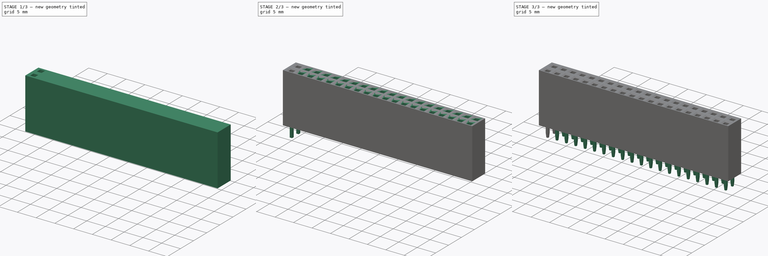
[diagram: build sequence overview — one tinted view per stage of 3, left to right]
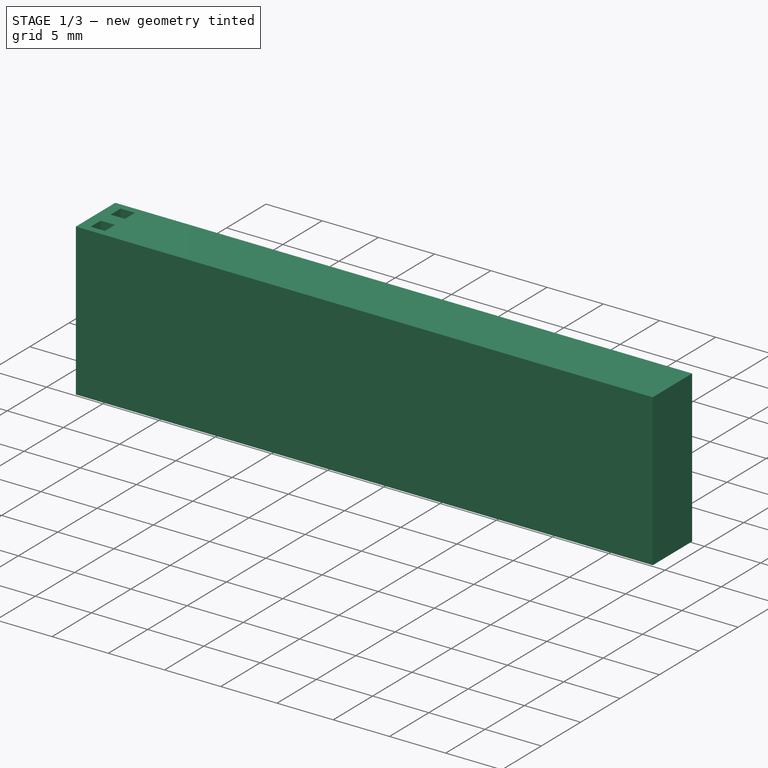
[diagram: stage 1 of 3 — iso view after this stage's code; geometry added in this stage tinted green]
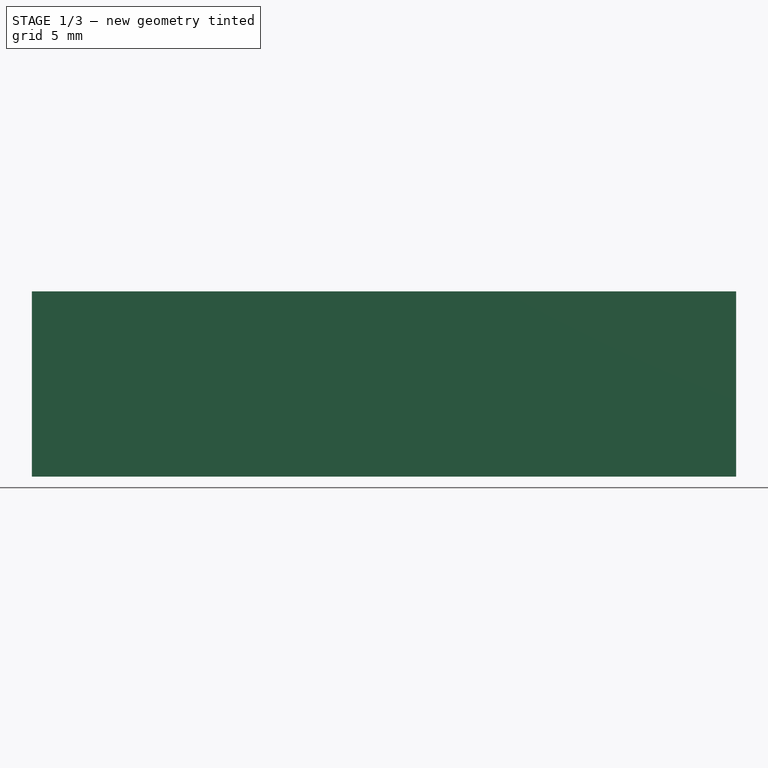
[diagram: stage 1 of 3 — front view after this stage's code; geometry added in this stage tinted green]
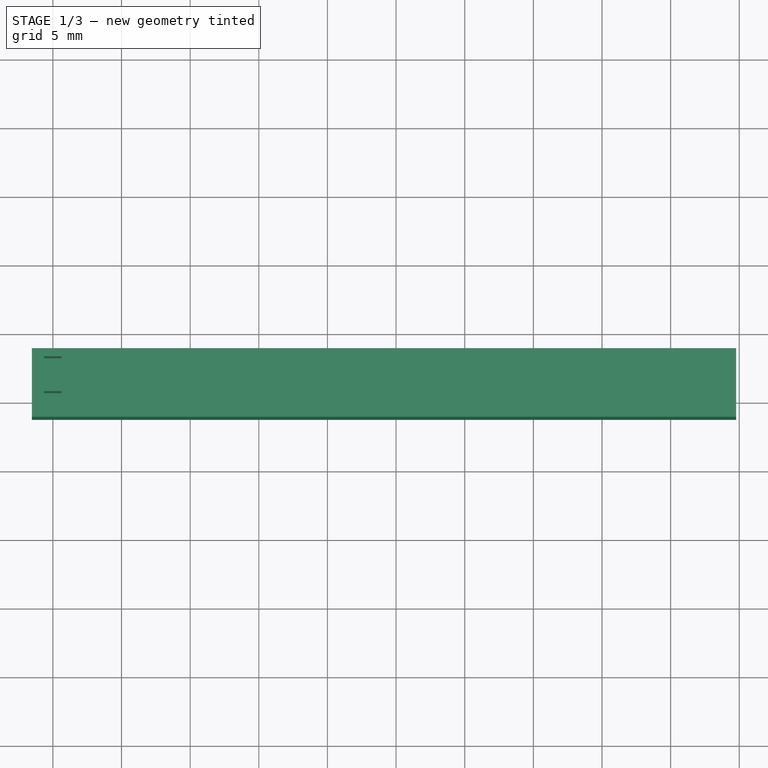
[diagram: stage 1 of 3 — top view after this stage's code; geometry added in this stage tinted green]
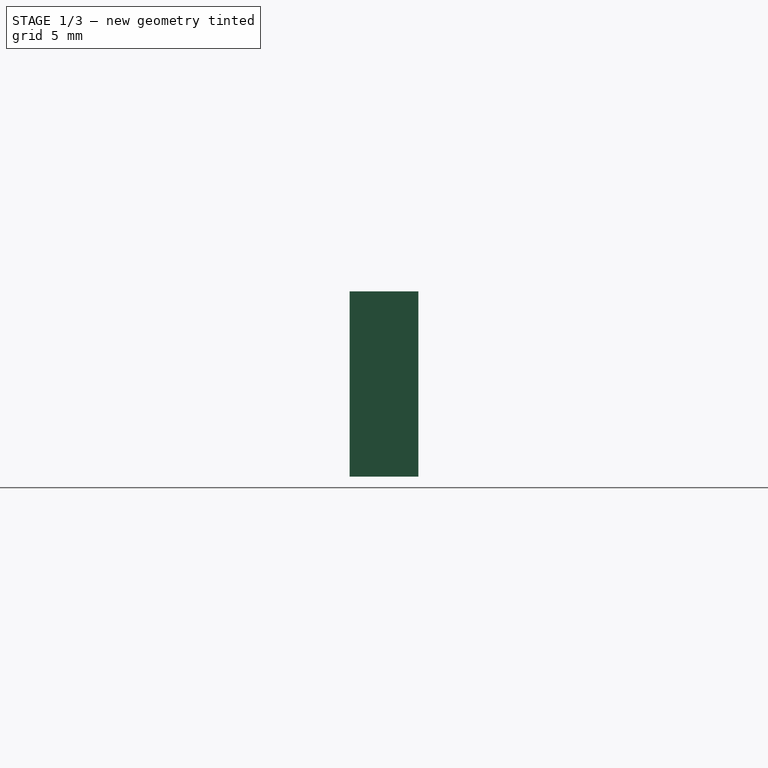
[diagram: stage 1 of 3 — right view after this stage's code; geometry added in this stage tinted green]
FCSTD DOCUMENT  (FreeCAD 0.22R37573 (Git))
Label: adafruit-tall-raspi-header
License: All rights reserved
LicenseURL: https://en.wikipedia.org/wiki/All_rights_reserved
objects: Sketcher::SketchObject×3, PartDesign::Pad×2, PartDesign::Chamfer×2, PartDesign::LinearPattern×2, PartDesign::Pocket×1, PartDesign::Body×1
note: 16 computed .brp shape members not serialized (recipe doc carries the construction recipe); baked Part::Feature solids carry a one-line shape summary decoded from their .brp

FEATURE [Sketcher::SketchObject] Sketch
  AttachmentSupport = -> [XY_Plane]
  FullyConstrained = true
  MapMode = 5
  Support = -> [XY_Plane]
  sketch-geometry (19):
    g0: LineSegment StartX=-0.635 StartY=-0.635 StartZ=0 EndX=0.635 EndY=-0.635 EndZ=0
    g1: LineSegment StartX=0.635 StartY=-0.635 StartZ=0 EndX=0.635 EndY=0.635 EndZ=0
    g2: LineSegment StartX=0.635 StartY=0.635 StartZ=0 EndX=-0.635 EndY=0.635 EndZ=0
    g3: LineSegment StartX=-0.635 StartY=0.635 StartZ=0 EndX=-0.635 EndY=-0.635 EndZ=0
    g4: GeomPoint X=0 Y=0 Z=0
    g5: LineSegment StartX=-0.635 StartY=1.905 StartZ=0 EndX=0.635 EndY=1.905 EndZ=0
    g6: LineSegment StartX=0.635 StartY=1.905 StartZ=0 EndX=0.635 EndY=3.175 EndZ=0
    g7: LineSegment StartX=0.635 StartY=3.175 StartZ=0 EndX=-0.635 EndY=3.175 EndZ=0
    g8: LineSegment StartX=-0.635 StartY=3.175 StartZ=0 EndX=-0.635 EndY=1.905 EndZ=0
    g9: GeomPoint X=0 Y=2.54 Z=0
    g10: LineSegment StartX=-1.53 StartY=3.77 StartZ=0 EndX=-1.53 EndY=-1.23 EndZ=0
    g11: LineSegment StartX=-1.53 StartY=-1.23 StartZ=0 EndX=49.77 EndY=-1.23 EndZ=0
    g12: LineSegment StartX=49.77 StartY=-1.23 StartZ=0 EndX=49.77 EndY=3.77 EndZ=0
    g13: LineSegment StartX=49.77 StartY=3.77 StartZ=0 EndX=-1.53 EndY=3.77 EndZ=0
    g14: LineSegment StartX=-0.635 StartY=3.175 StartZ=0 EndX=-0.635 EndY=3.77 EndZ=0
    g15: LineSegment StartX=-0.635 StartY=-0.635 StartZ=0 EndX=-0.635 EndY=-1.23 EndZ=0
    g16: LineSegment StartX=-0.635 StartY=3.175 StartZ=0 EndX=-1.53 EndY=3.175 EndZ=0
    g17: LineSegment StartX=48.875 StartY=3.175 StartZ=0 EndX=49.77 EndY=3.175 EndZ=0
    g18: LineSegment StartX=0.635 StartY=3.175 StartZ=0 EndX=48.875 EndY=3.175 EndZ=0
  constraints (52):
    c: Coincident(g0,g1)
    c: Coincident(g1,g2)
    c: Coincident(g2,g3)
    c: Coincident(g3,g0)
    c: Horizontal(g0)
    c: Horizontal(g2)
    c: Vertical(g1)
    c: Vertical(g3)
    c: Symmetric(g2,g0,g4)
    c: Coincident(g4,g-1)
    c: DistanceX(g2,g2) = 1.27
    c: Equal(g1,g2)
    c: Coincident(g5,g6)
    c: Coincident(g6,g7)
    c: Coincident(g7,g8)
    c: Coincident(g8,g5)
    c: Horizontal(g5)
    c: Horizontal(g7)
    c: Vertical(g6)
    c: Vertical(g8)
    c: Symmetric(g7,g5,g9)
    c: PointOnObject(g9,g-2)
    c: Equal(g7,g6)
    c: Equal(g6,g2)
    c: DistanceY(g4,g9) = 2.54
    c: Coincident(g10,g11)
    c: Coincident(g11,g12)
    c: Coincident(g12,g13)
    c: Coincident(g13,g10)
    c: Vertical(g10)
    c: Vertical(g12)
    c: Horizontal(g11)
    c: Horizontal(g13)
    c: DistanceX(g13,g13) = 51.3
    c: DistanceY(g10,g10) = 5
    c: Coincident(g14,g7)
    c: PointOnObject(g14,g13)
    c: Vertical(g14)
    c: Coincident(g15,g0)
    c: PointOnObject(g15,g11)
    c: Vertical(g15)
    c: Equal(g15,g14)
    c: Coincident(g16,g7)
    c: PointOnObject(g16,g10)
    c: Horizontal(g16)
    c: PointOnObject(g17,g12)
    c: Horizontal(g17)
    c: Equal(g17,g16)
    c: DistanceX(g7,g17) = 49.51
    c: Coincident(g18,g6)
    c: Coincident(g18,g17)
    c: Horizontal(g18)
FEATURE [PartDesign::Pad] Pad
  Direction = (0,0,1)
  Length = 13.5
  Length2 = 10
  Profile = -> Sketch
  ReferenceAxis = -> Sketch [N_Axis]
  Suppressed = false
  Type = 0
FEATURE [Sketcher::SketchObject] Sketch001
  AttachmentSupport = -> [Pad]
  FullyConstrained = true
  MapMode = 5
  Placement = pos=(0,0,13.5) rot=(0,0,1;0rad)
  Support = -> [Pad]
  sketch-geometry (10):
    g0: LineSegment StartX=-0.635 StartY=-0.635 StartZ=0 EndX=0.635 EndY=-0.635 EndZ=0
    g1: LineSegment StartX=0.635 StartY=-0.635 StartZ=0 EndX=0.635 EndY=0.635 EndZ=0
    g2: LineSegment StartX=0.635 StartY=0.635 StartZ=0 EndX=-0.635 EndY=0.635 EndZ=0
    g3: LineSegment StartX=-0.635 StartY=0.635 StartZ=0 EndX=-0.635 EndY=-0.635 EndZ=0
    g4: GeomPoint X=0 Y=0 Z=0
    g5: LineSegment StartX=-0.635 StartY=1.905 StartZ=0 EndX=0.635 EndY=1.905 EndZ=0
    g6: LineSegment StartX=0.635 StartY=1.905 StartZ=0 EndX=0.635 EndY=3.175 EndZ=0
    g7: LineSegment StartX=0.635 StartY=3.175 StartZ=0 EndX=-0.635 EndY=3.175 EndZ=0
    g8: LineSegment StartX=-0.635 StartY=3.175 StartZ=0 EndX=-0.635 EndY=1.905 EndZ=0
    g9: GeomPoint X=0 Y=2.54 Z=0
  constraints (25):
    c: Coincident(g0,g1)
    c: Coincident(g1,g2)
    c: Coincident(g2,g3)
    c: Coincident(g3,g0)
    c: Horizontal(g0)
    c: Horizontal(g2)
    c: Vertical(g1)
    c: Vertical(g3)
    c: Symmetric(g2,g0,g4)
    c: Coincident(g4,g-1)
    c: Equal(g2,g1)
    c: DistanceX(g2,g2) = 1.27
    c: Coincident(g5,g6)
    c: Coincident(g6,g7)
    c: Coincident(g7,g8)
    c: Coincident(g8,g5)
    c: Horizontal(g5)
    c: Horizontal(g7)
    c: Vertical(g6)
    c: Vertical(g8)
    c: Symmetric(g7,g5,g9)
    c: PointOnObject(g9,g-2)
    c: Equal(g7,g6)
    c: Equal(g6,g2)
    c: DistanceY(g4,g9) = 2.54
FEATURE [PartDesign::Pocket] Pocket
  BaseFeature = -> Pad
  Direction = (0,0,-1)
  Length = 8.5
  Length2 = 5
  Profile = -> Sketch001
  ReferenceAxis = -> Sketch001 [N_Axis]
  Suppressed = false
  Type = 0
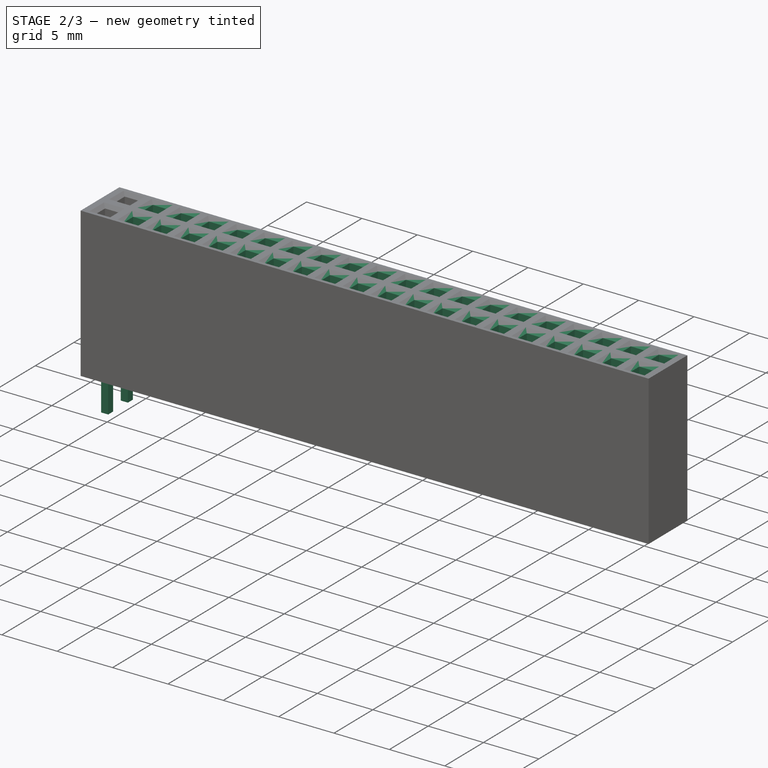
[diagram: stage 2 of 3 — iso view after this stage's code; geometry added in this stage tinted green]
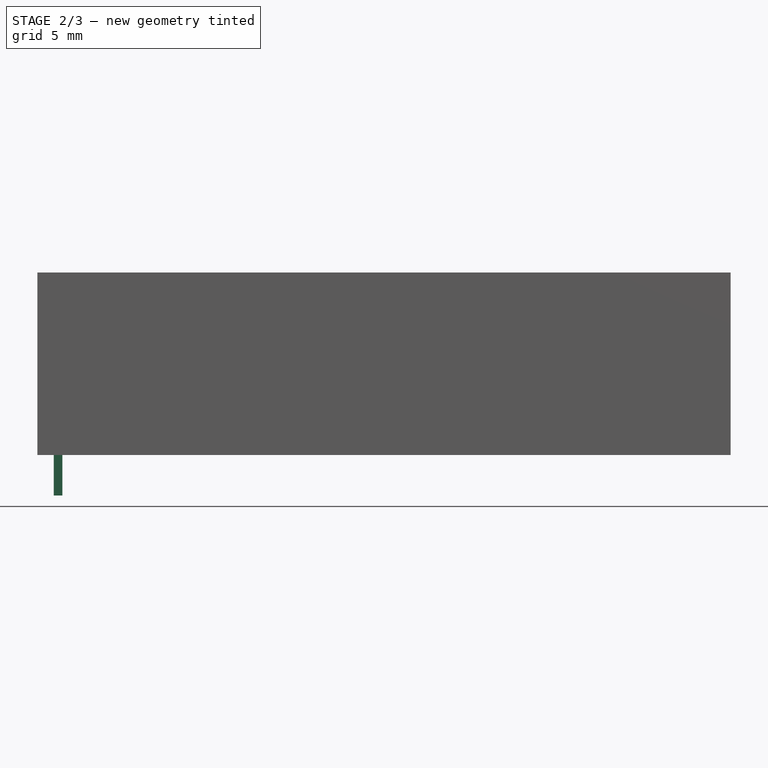
[diagram: stage 2 of 3 — front view after this stage's code; geometry added in this stage tinted green]
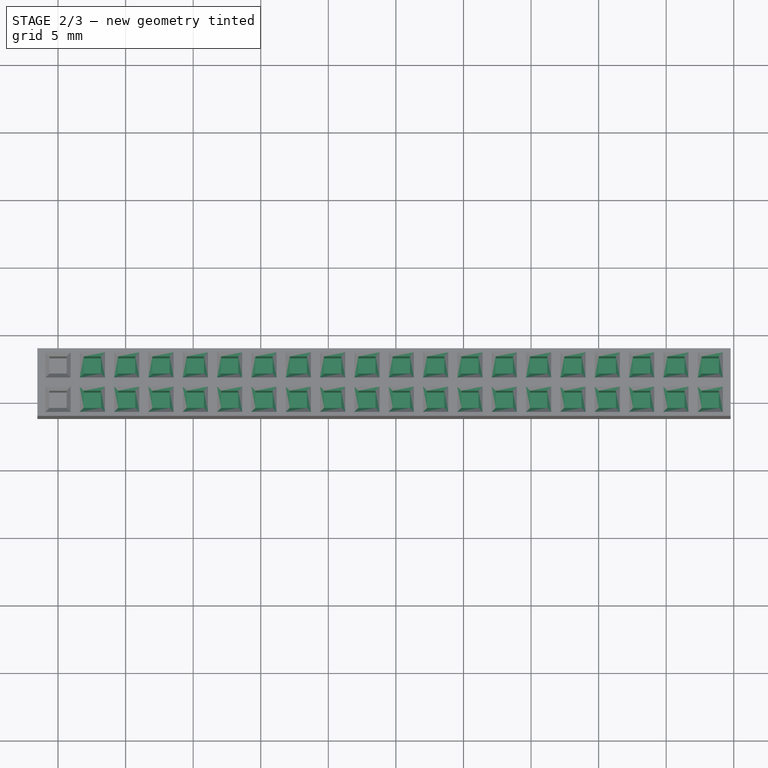
[diagram: stage 2 of 3 — top view after this stage's code; geometry added in this stage tinted green]
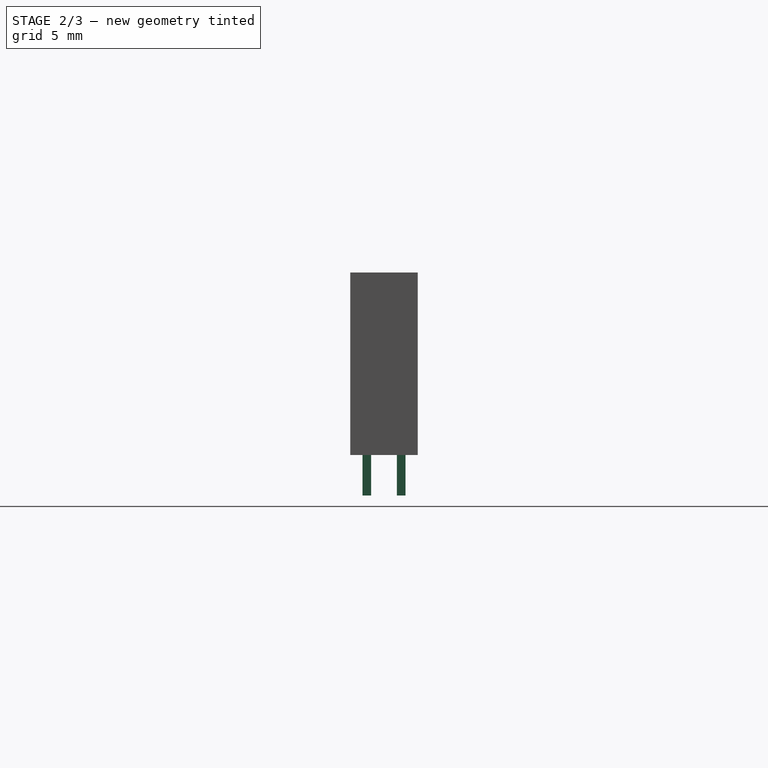
[diagram: stage 2 of 3 — right view after this stage's code; geometry added in this stage tinted green]
FEATURE [PartDesign::Chamfer] Chamfer
  Angle = 45
  Base = -> Pocket [Edge13,Edge14,Edge15,Edge16,Edge17,Edge20,Edge19,Edge18]
  BaseFeature = -> Pocket
  ChamferType = 0
  FlipDirection = false
  Size = 0.3
  Size2 = 1
  SupportTransform = false
  Suppressed = false
  UseAllEdges = false
FEATURE [PartDesign::LinearPattern] LinearPattern
  BaseFeature = -> Chamfer
  Direction = -> X_Axis
  Length = 48.26
  Mode = 1
  Occurrences = 20
  Offset = 2.54
  Originals = -> [Chamfer,Pocket]
  Suppressed = false
FEATURE [Sketcher::SketchObject] Sketch002
  AttachmentSupport = -> [LinearPattern]
  FullyConstrained = true
  MapMode = 5
  Placement = pos=(0,0,0) rot=(1,0,0;3.14159rad)
  Support = -> [LinearPattern]
  sketch-geometry (10):
    g0: LineSegment StartX=-0.32 StartY=-0.32 StartZ=0 EndX=0.32 EndY=-0.32 EndZ=0
    g1: LineSegment StartX=0.32 StartY=-0.32 StartZ=0 EndX=0.32 EndY=0.32 EndZ=0
    g2: LineSegment StartX=0.32 StartY=0.32 StartZ=0 EndX=-0.32 EndY=0.32 EndZ=0
    g3: LineSegment StartX=-0.32 StartY=0.32 StartZ=0 EndX=-0.32 EndY=-0.32 EndZ=0
    g4: GeomPoint X=0 Y=0 Z=0
    g5: LineSegment StartX=-0.32 StartY=-2.86 StartZ=0 EndX=0.32 EndY=-2.86 EndZ=0
    g6: LineSegment StartX=0.32 StartY=-2.86 StartZ=0 EndX=0.32 EndY=-2.22 EndZ=0
    g7: LineSegment StartX=0.32 StartY=-2.22 StartZ=0 EndX=-0.32 EndY=-2.22 EndZ=0
    g8: LineSegment StartX=-0.32 StartY=-2.22 StartZ=0 EndX=-0.32 EndY=-2.86 EndZ=0
    g9: GeomPoint X=0 Y=-2.54 Z=0
  constraints (25):
    c: Coincident(g0,g1)
    c: Coincident(g1,g2)
    c: Coincident(g2,g3)
    c: Coincident(g3,g0)
    c: Horizontal(g0)
    c: Horizontal(g2)
    c: Vertical(g1)
    c: Vertical(g3)
    c: Symmetric(g2,g0,g4)
    c: Coincident(g4,g-1)
    c: Coincident(g5,g6)
    c: Coincident(g6,g7)
    c: Coincident(g7,g8)
    c: Coincident(g8,g5)
    c: Horizontal(g5)
    c: Horizontal(g7)
    c: Vertical(g6)
    c: Vertical(g8)
    c: Symmetric(g7,g5,g9)
    c: PointOnObject(g9,g-2)
    c: Equal(g2,g1)
    c: Equal(g1,g7)
    c: Equal(g7,g6)
    c: DistanceX(g2,g2) = 0.64
    c: DistanceY(g9,g4) = 2.54
FEATURE [PartDesign::Pad] Pad001
  BaseFeature = -> LinearPattern
  Direction = (0,0,-1)
  Length = 3
  Length2 = 10
  Profile = -> Sketch002
  ReferenceAxis = -> Sketch002 [N_Axis]
  Suppressed = false
  Type = 0
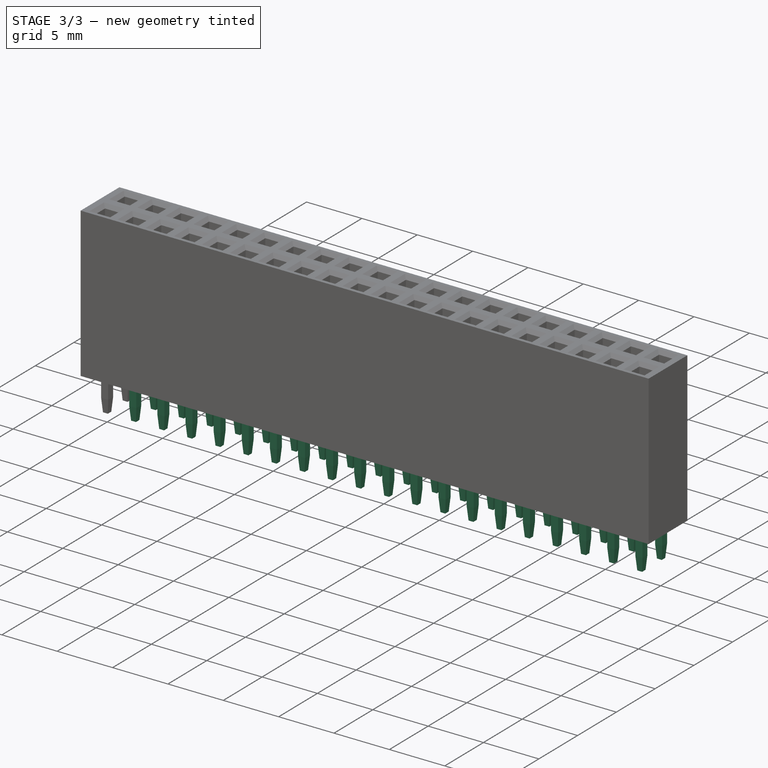
[diagram: stage 3 of 3 — iso view after this stage's code; geometry added in this stage tinted green]
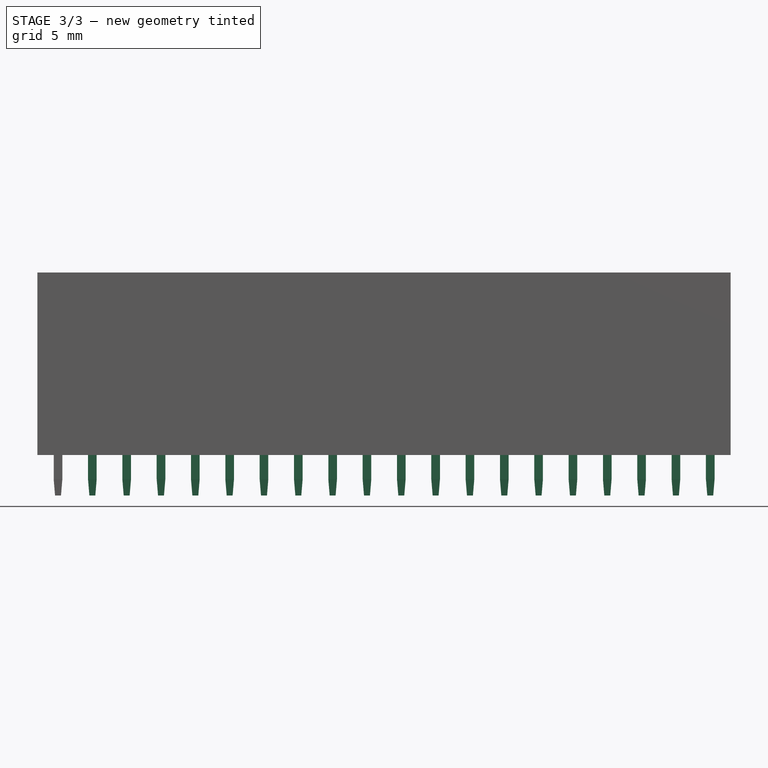
[diagram: stage 3 of 3 — front view after this stage's code; geometry added in this stage tinted green]
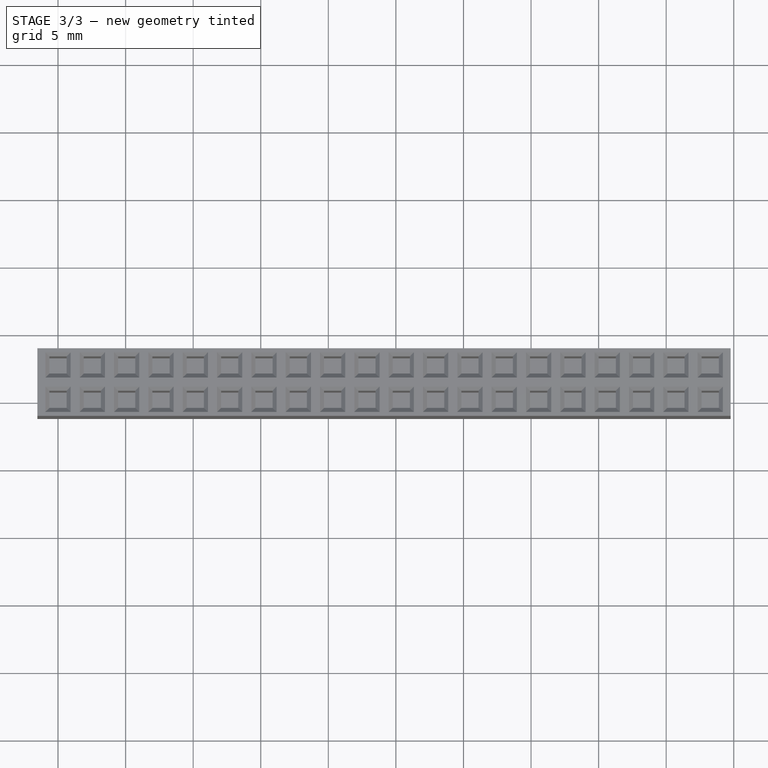
[diagram: stage 3 of 3 — top view after this stage's code; geometry added in this stage tinted green]
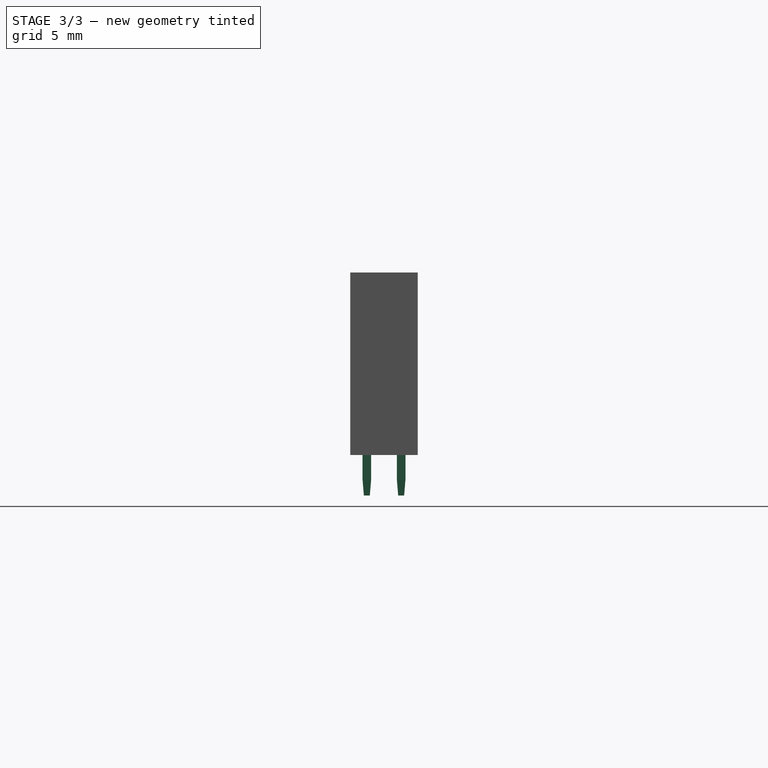
[diagram: stage 3 of 3 — right view after this stage's code; geometry added in this stage tinted green]
FEATURE [PartDesign::Chamfer] Chamfer001
  Angle = 45
  Base = -> Pad001 [Face375,Face376]
  BaseFeature = -> Pad001
  ChamferType = 1
  FlipDirection = false
  Size = 1.2
  Size2 = 0.1
  SupportTransform = false
  Suppressed = false
  UseAllEdges = false
FEATURE [PartDesign::LinearPattern] LinearPattern001
  BaseFeature = -> Chamfer001
  Direction = -> X_Axis
  Length = 48.26
  Mode = 1
  Occurrences = 20
  Offset = 2.54
  Originals = -> [Pad001,Chamfer001]
  Suppressed = false
FEATURE [PartDesign::Body] Body  label="adafruit-tall-raspi-header"
  AllowCompound = false
  Group = -> [Sketch,Pad,Sketch001,Pocket,Chamfer,LinearPattern,Sketch002,Pad001,Chamfer001,LinearPattern001]
  Origin = -> Origin
  Tip = -> LinearPattern001
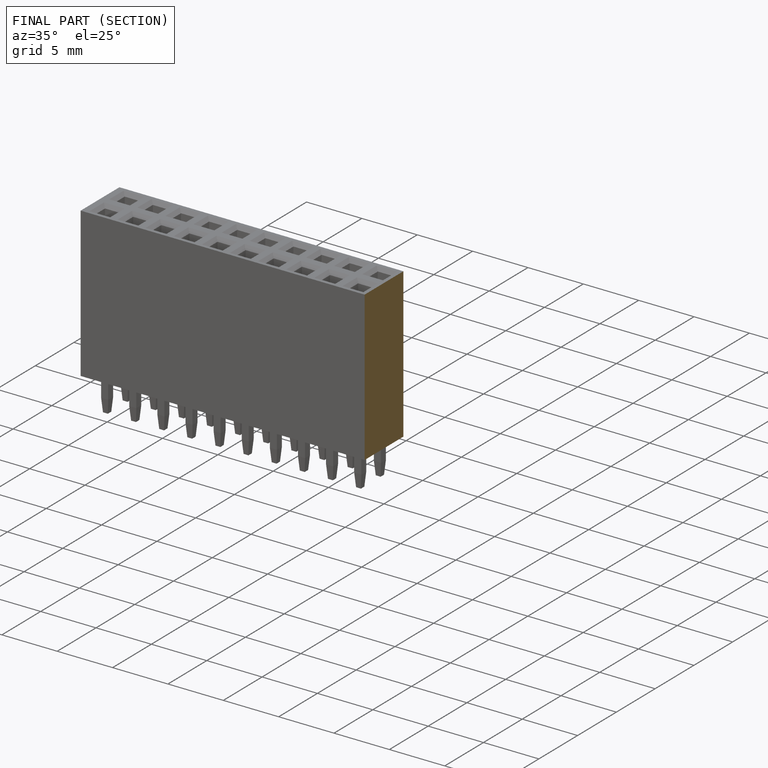
[diagram: finished part — half-section view (interior)]
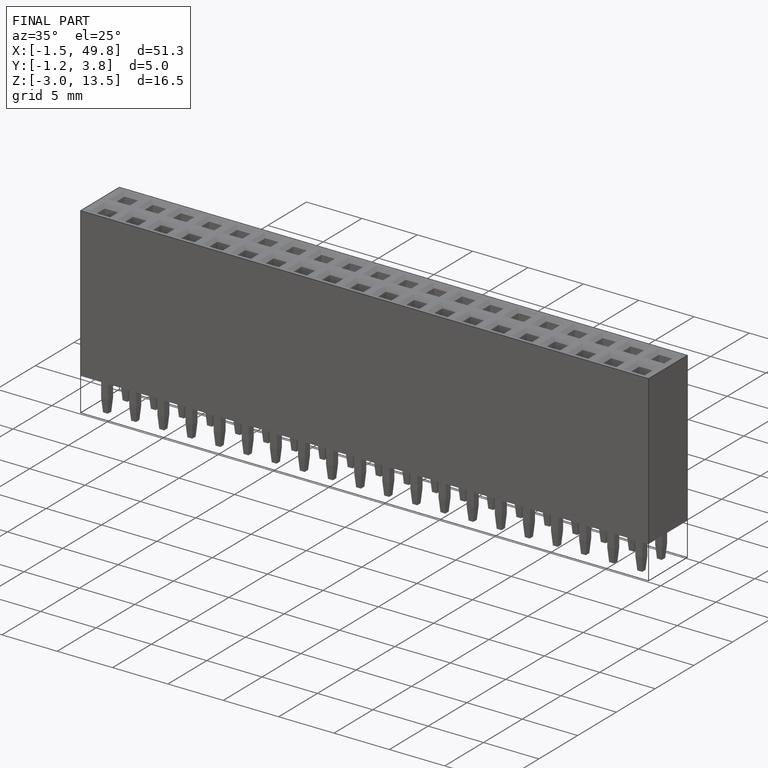
[diagram: finished part — iso view with bounding-box wireframe]
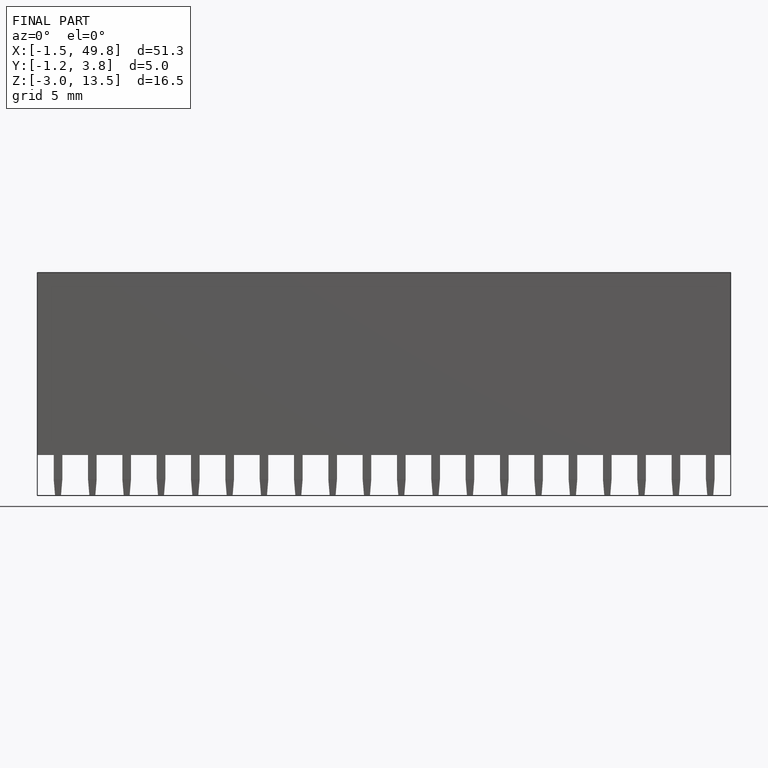
[diagram: finished part — front view with bounding-box wireframe]
